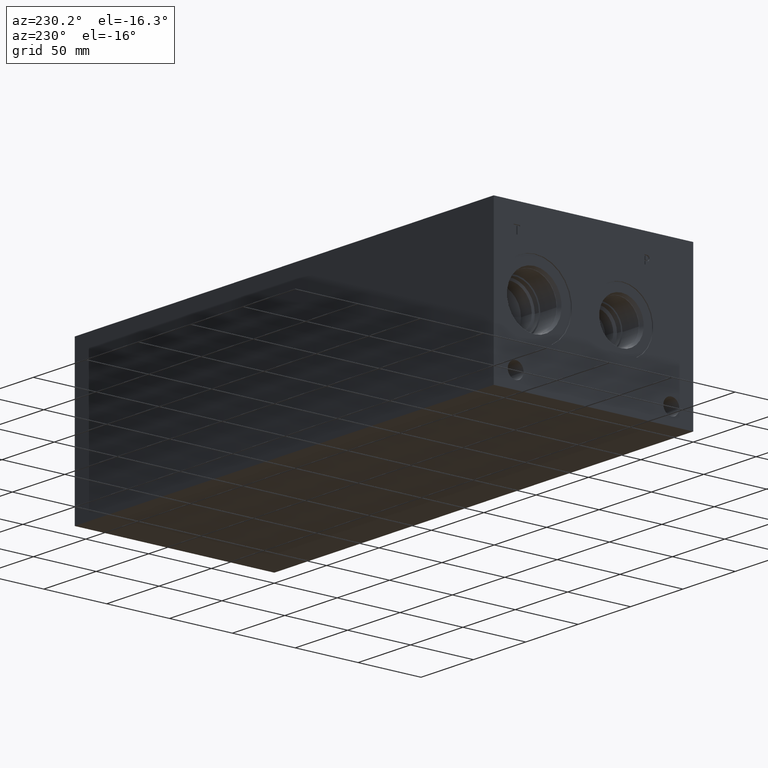
[diagram: clean part render]
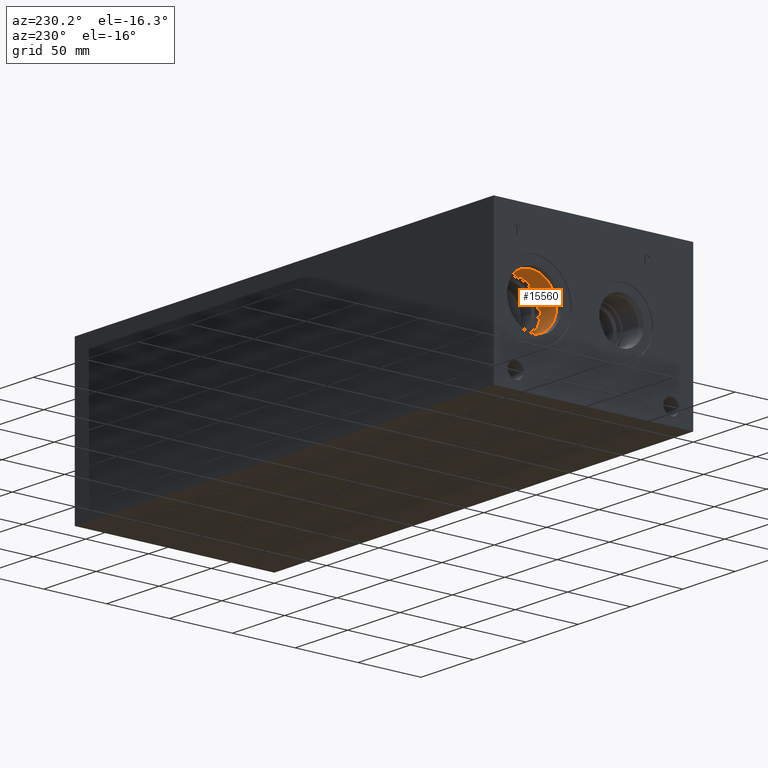
[diagram: same view with one face highlighted and labeled with its STEP entity id]
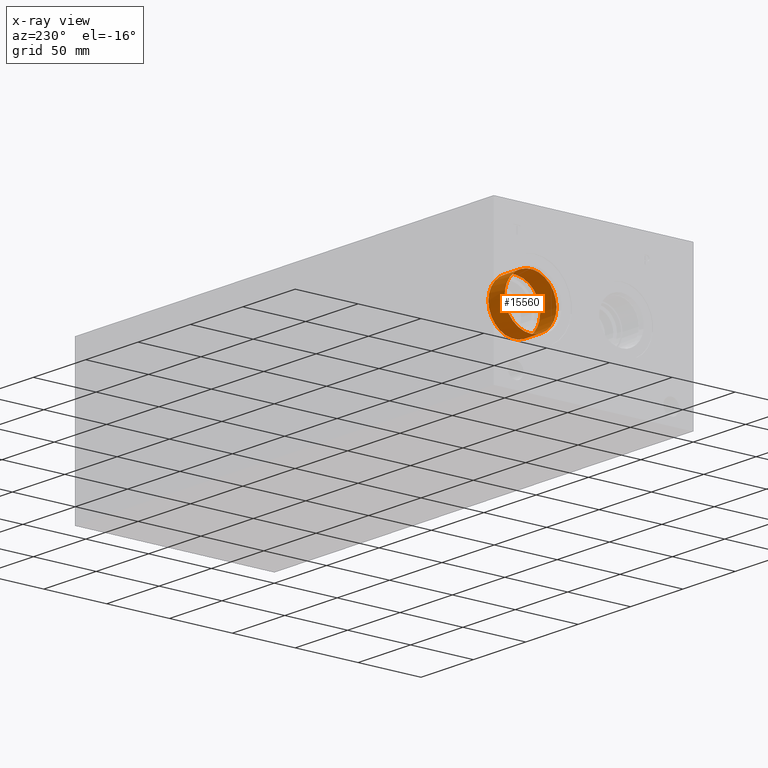
[diagram: x-ray of the same camera — body ghosted, the highlighted face saturated]
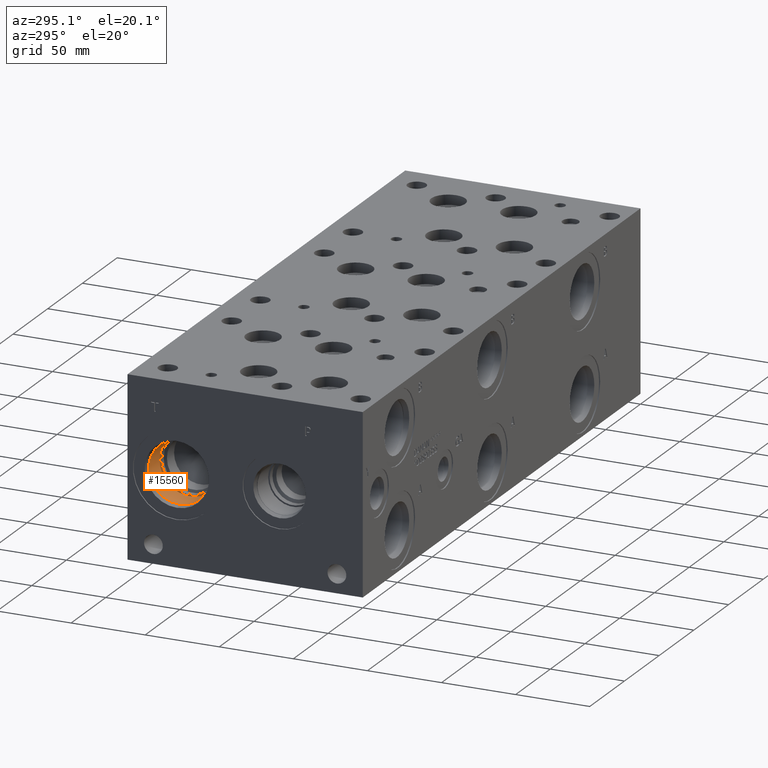
[diagram: same view with one face highlighted and labeled with its STEP entity id]
A machine part, auxiliary view. The second image highlights one B-rep face of the part: STEP entity #15560.
The next image is the same camera in x-ray: the body ghosted, the highlighted face saturated — about 0% of this face is hidden behind the body in this view.
A second angle (auxiliary view) of the same face is appended — the face is thin or edge-on in the first view.
In plain terms, the highlighted cylindrical surface (bore or boss wall) has radius 20.64 mm, axis along (-1, 0, 0).
Its self-contained STEP definition (entity closure, byte-faithful):
#86=CYLINDRICAL_SURFACE('',#16476,20.64);
#698=CIRCLE('',#16473,20.64);
#699=CIRCLE('',#16474,20.64);
#701=CIRCLE('',#16477,20.64);
#702=CIRCLE('',#16478,20.64);
#2140=FACE_OUTER_BOUND('',#3058,.T.);
#3058=EDGE_LOOP('',(#13277,#13278,#13279,#13280,#13281,#13282));
#4466=LINE('',#26633,#5793);
#5793=VECTOR('',#19602,20.64);
#7152=VERTEX_POINT('',#26623);
#7153=VERTEX_POINT('',#26624);
#7155=VERTEX_POINT('',#26630);
#7156=VERTEX_POINT('',#26631);
#9268=EDGE_CURVE('',#7152,#7153,#698,.T.);
#9269=EDGE_CURVE('',#7153,#7152,#699,.T.);
#9271=EDGE_CURVE('',#7155,#7156,#701,.T.);
#9272=EDGE_CURVE('',#7155,#7153,#4466,.T.);
#9273=EDGE_CURVE('',#7156,#7155,#702,.T.);
#13277=ORIENTED_EDGE('',*,*,#9271,.F.);
#13278=ORIENTED_EDGE('',*,*,#9272,.T.);
#13279=ORIENTED_EDGE('',*,*,#9268,.F.);
#13280=ORIENTED_EDGE('',*,*,#9269,.F.);
#13281=ORIENTED_EDGE('',*,*,#9272,.F.);
#13282=ORIENTED_EDGE('',*,*,#9273,.F.);
#15560=ADVANCED_FACE('',(#2140),#86,.F.);
#16473=AXIS2_PLACEMENT_3D('',#26625,#19592,#19593);
#16474=AXIS2_PLACEMENT_3D('',#26626,#19594,#19595);
#16476=AXIS2_PLACEMENT_3D('',#26629,#19598,#19599);
#16477=AXIS2_PLACEMENT_3D('',#26632,#19600,#19601);
#16478=AXIS2_PLACEMENT_3D('',#26634,#19603,#19604);
#19592=DIRECTION('center_axis',(-1.,0.,0.));
#19593=DIRECTION('ref_axis',(0.,1.,0.));
#19594=DIRECTION('center_axis',(-1.,0.,0.));
#19595=DIRECTION('ref_axis',(0.,1.,0.));
#19598=DIRECTION('center_axis',(-1.,0.,0.));
#19599=DIRECTION('ref_axis',(0.,1.,0.));
#19600=DIRECTION('center_axis',(1.,0.,0.));
#19601=DIRECTION('ref_axis',(0.,1.,0.));
#19602=DIRECTION('',(1.,0.,0.));
#19603=DIRECTION('center_axis',(1.,0.,0.));
#19604=DIRECTION('ref_axis',(0.,1.,0.));
#26623=CARTESIAN_POINT('',(19.8374,146.4716,60.325));
#26624=CARTESIAN_POINT('',(19.8374,105.1916,60.325));
#26625=CARTESIAN_POINT('Origin',(19.8374,125.8316,60.325));
#26626=CARTESIAN_POINT('Origin',(19.8374,125.8316,60.325));
#26629=CARTESIAN_POINT('Origin',(9.9187,125.8316,60.325));
#26630=CARTESIAN_POINT('',(4.3028,105.1916,60.325));
#26631=CARTESIAN_POINT('',(4.3028,125.8316,39.685));
#26632=CARTESIAN_POINT('Origin',(4.3028,125.8316,60.325));
#26633=CARTESIAN_POINT('',(9.9187,105.1916,60.325));
#26634=CARTESIAN_POINT('Origin',(4.3028,125.8316,60.325));